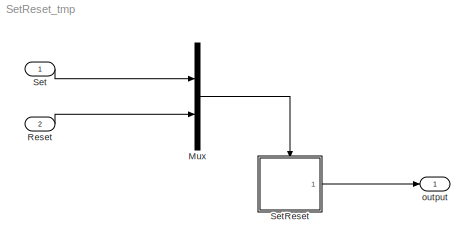
MODEL SetReset_tmp
KIND model
BLOCK [Mux] Mux
  DisplayOption = bar
  Inputs = 2
  Ports = [2, 1]
  SID = 3
BLOCK [Inport] Reset
  IconDisplay = Port number
  Port = 2
  SID = 2
BLOCK [Inport] Set
  IconDisplay = Port number
  SID = 1
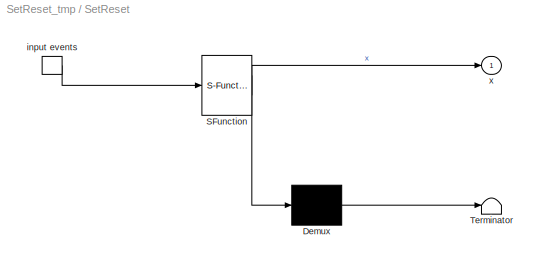
BLOCK [SubSystem] SetReset
  ErrorFcn = Stateflow.Translate.translate
  PermitHierarchicalResolution = ParametersOnly
  Ports = [0, 1, 0, 1]
  RequestExecContextInheritance = off
  SFBlockType = Chart
  SID = 4
  TreatAsAtomicUnit = on
  Variant = off
BLOCK [Demux] SetReset/ Demux 
  Outputs = 1
  Ports = [1, 1]
  SID = 4::10
BLOCK [S-Function] SetReset/ SFunction 
  EnableBusSupport = off
  FunctionName = sf_sfun
  PortCounts = [1 2]
  Ports = [1, 2]
  SFunctionDeploymentMode = off
  SID = 4::9
  Tag = Stateflow S-Function SetReset_tmp 1
BLOCK [Terminator] SetReset/ Terminator 
  SID = 4::11
BLOCK [TriggerPort] SetReset/ input events 
  Ports = [0, 1]
  SID = 4::1
  ShowOutputPort = on
BLOCK [Outport] SetReset/x
  IconDisplay = Port number
  SID = 4::5
BLOCK [Outport] output
  IconDisplay = Port number
  SID = 5
LINE Mux:1 -> SetReset:trigger
LINE Reset:1 -> Mux:2
LINE Set:1 -> Mux:1
LINE SetReset/ Demux :1 -> SetReset/ Terminator :1
LINE SetReset/ SFunction :1 -> SetReset/ Demux :1
LINE SetReset/ SFunction :2 -> SetReset/x:1
LINE SetReset/ input events :1 -> SetReset/ SFunction :1
LINE SetReset:1 -> output:1
CHART SetReset states=2 transitions=3
  STATE_LABEL 'Off/\\nen:x=0'
  STATE_LABEL 'On/\\nen:x=1'
